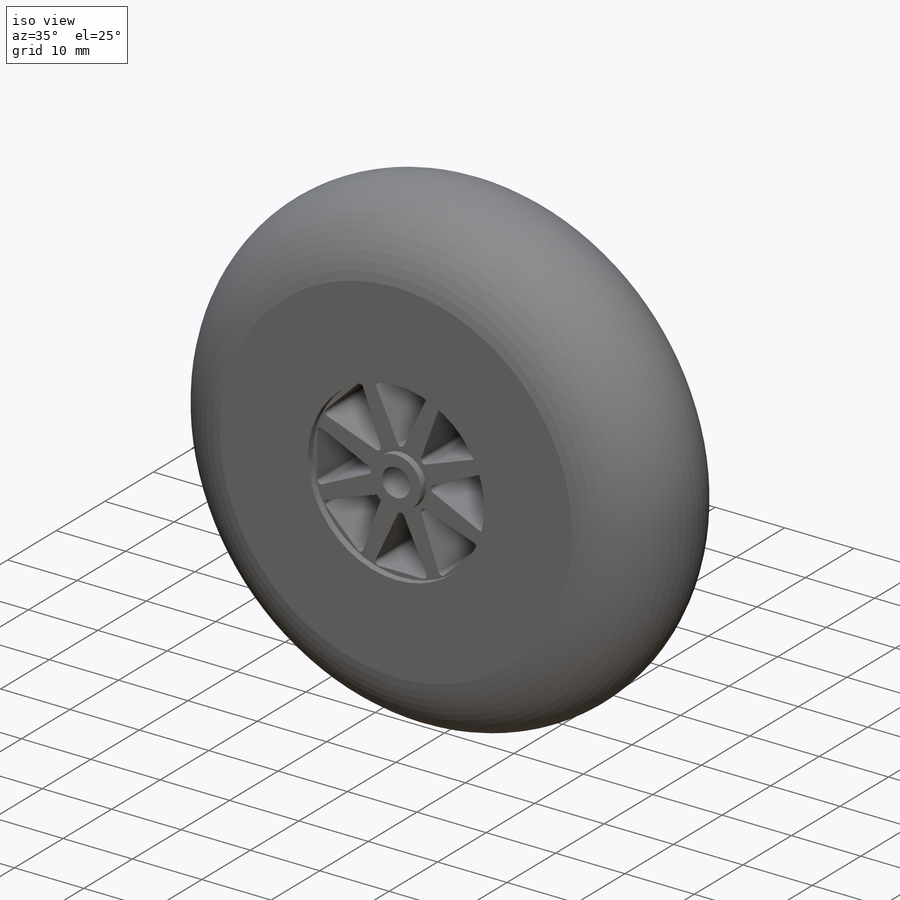
[diagram: iso view]
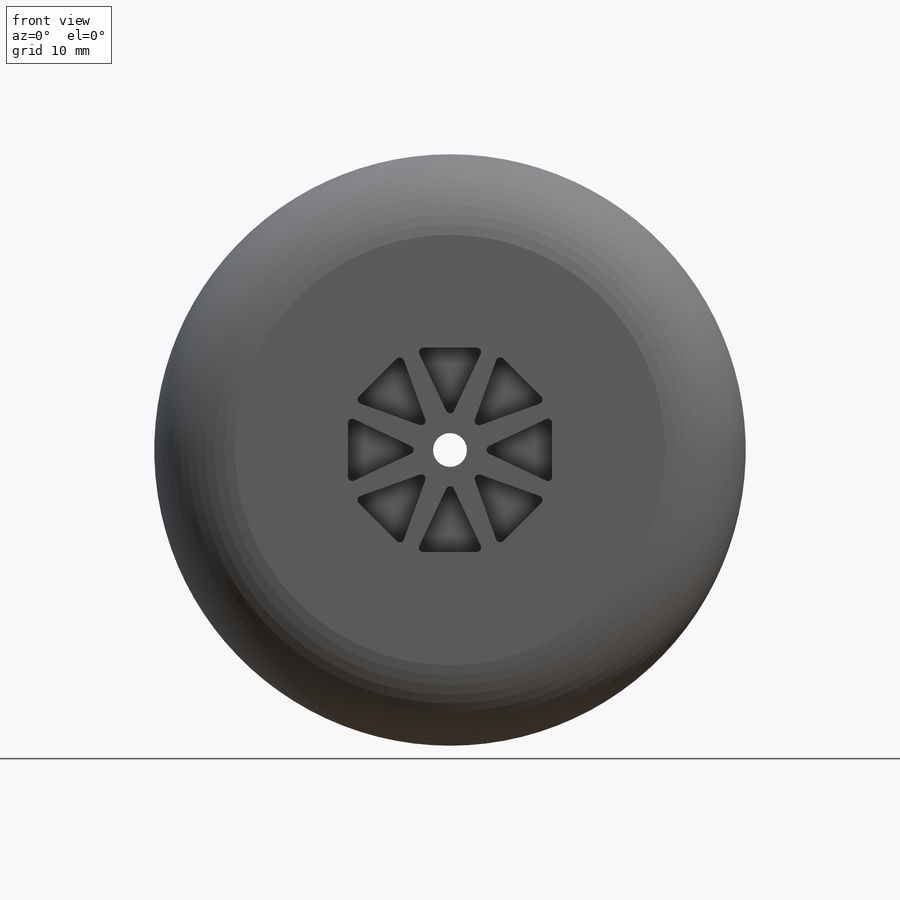
[diagram: front view]
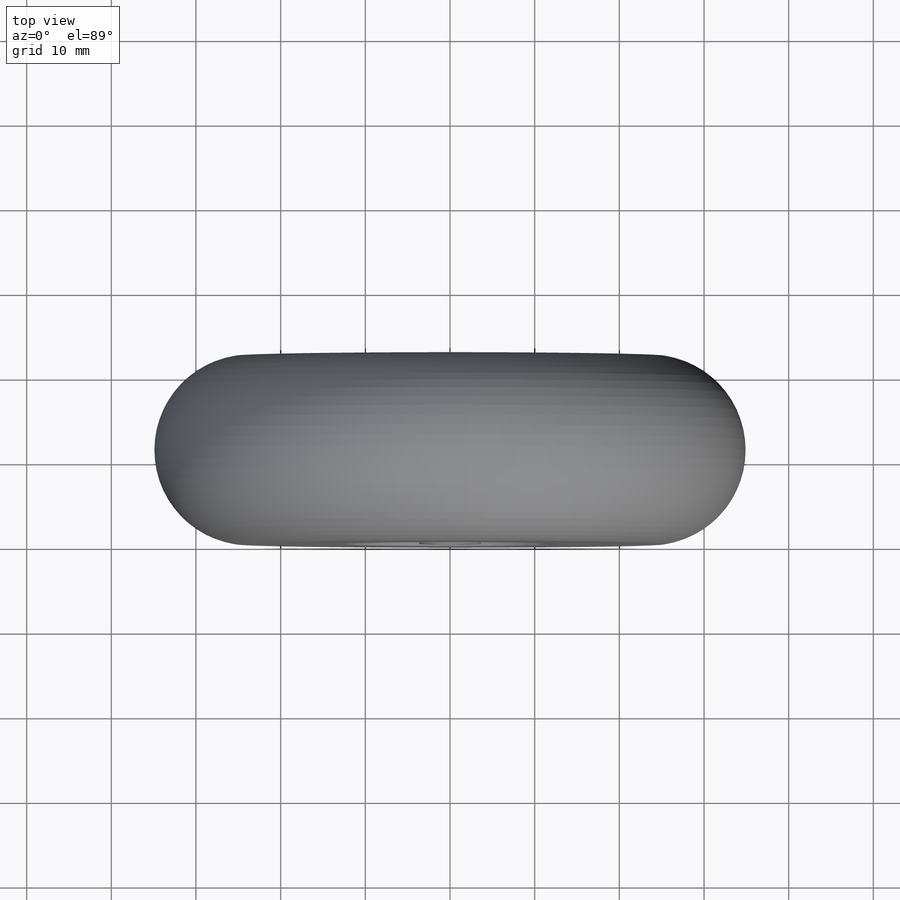
[diagram: top view]
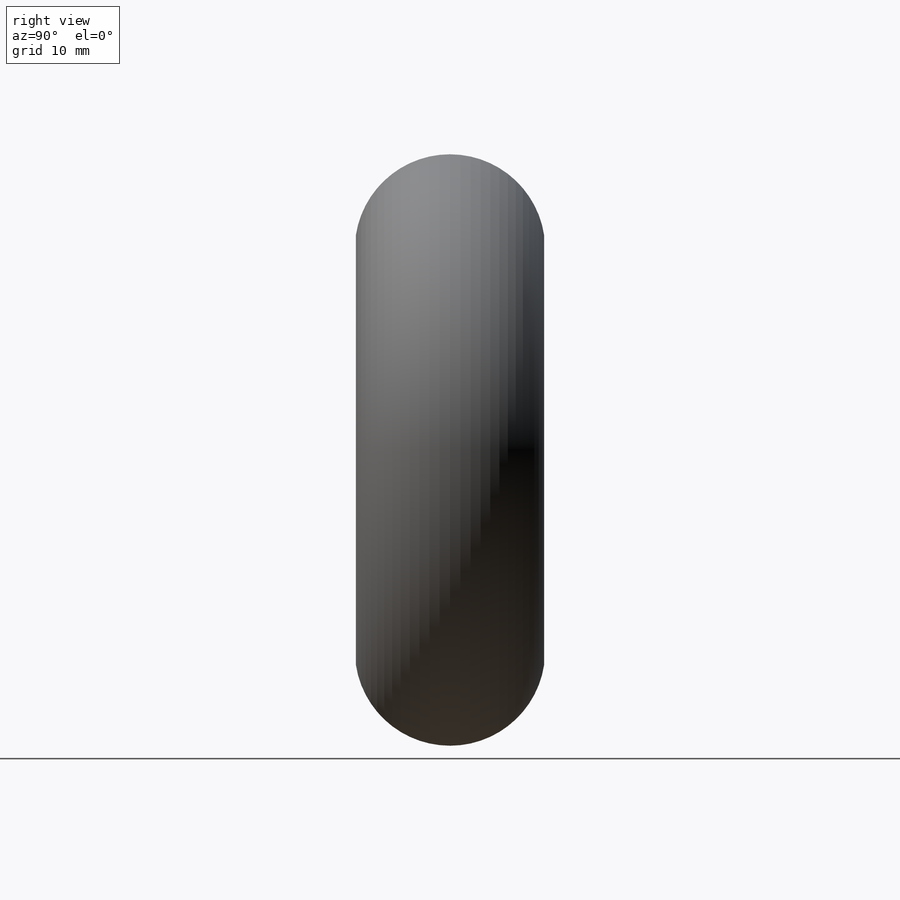
[diagram: right view]
SOLIDWORKS PART (.sldprt)
format: sldprt  version: not decoded by parser v0  size: 401,920 bytes
history: native  units: mm
features: sketch x3, cut_extrude x2, material x1, revolve x1 (+11 scaffold rows collapsed)
feature tree (18):
  scaffold x11  (default folders/planes/origin — collapsed)
  material  "Rubber"
  sketch  "Sketch1"  dims[c1.D3=~11.530094mm c1.D1=38.1mm c1.D2=22.225mm c2.D1=25.4mm c2.D3=34.925mm c2.D4=2.0mm c2.D5=28.575mm]
  revolve  "Revolve1"  Angle=360deg
  sketch  "Sketch2"  dims[D1=25.4mm D2=7.25mm]
  cut_extrude  "Cut-Extrude1"  Depth=1mm
  sketch  "Sketch3"  dims[D1=0.508mm D2=0.508mm D3=6.35mm D5=6.35mm D4=8.0]
  cut_extrude  "Cut-Extrude2"  Depth=9.525mm
decode coverage: 6 of 6 modeling features carry decoded parameters
note: ~ marks probable driven/reference dimensions
note: suppression state not decoded; provenance and decode notes live in map.json
